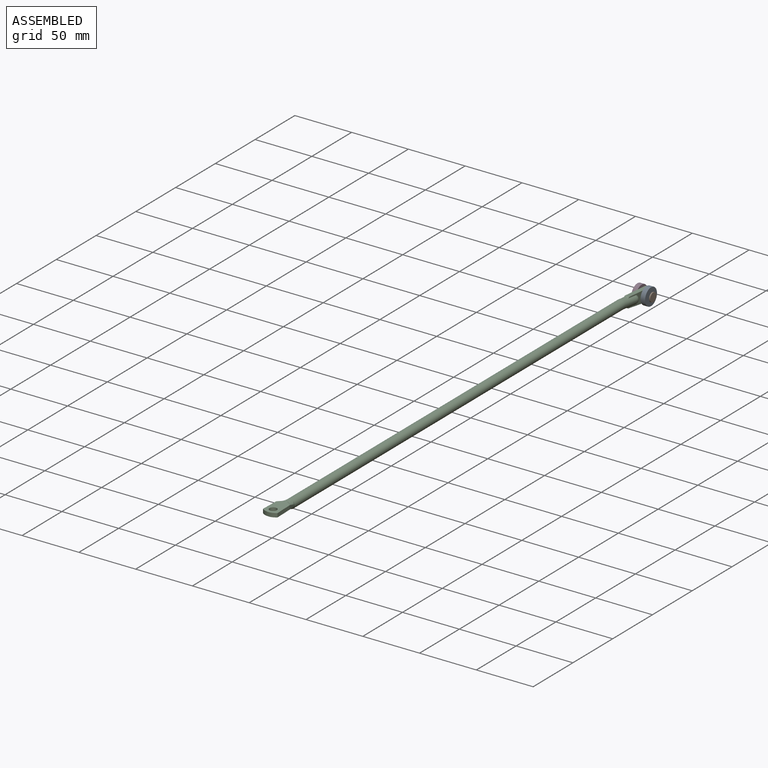
[diagram: assembled view]
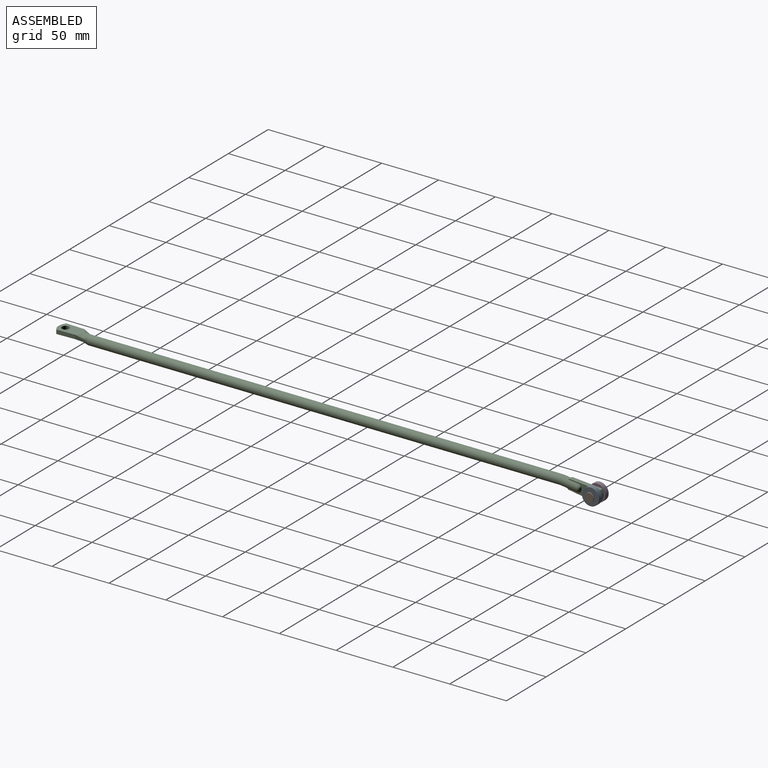
[diagram: assembled view, second angle]
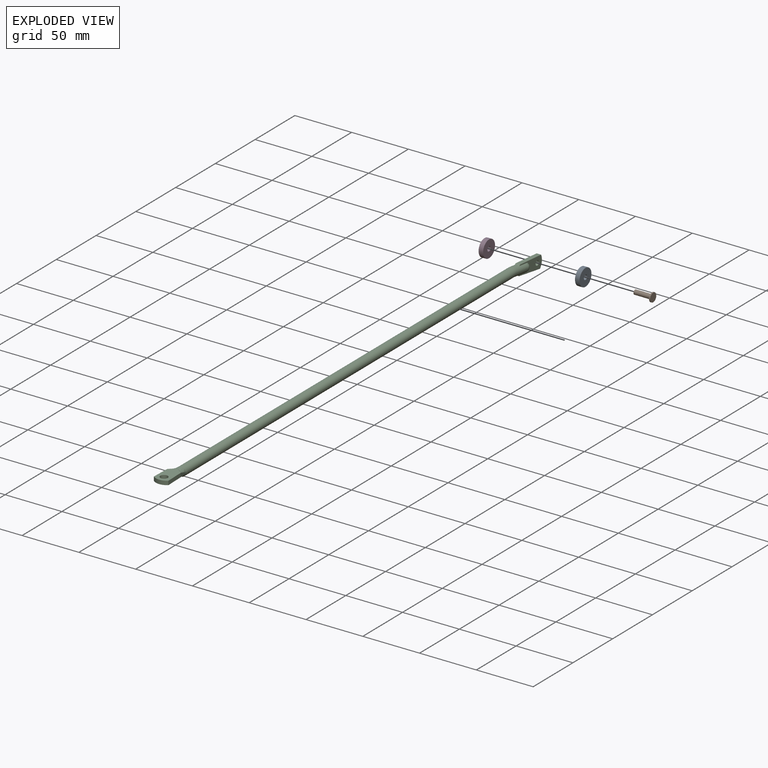
[diagram: exploded view]
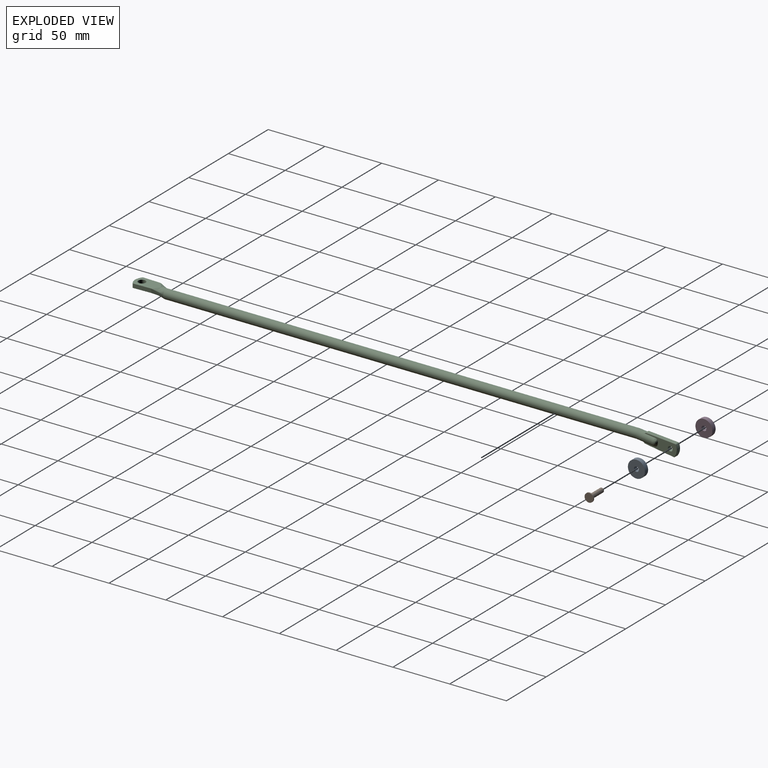
[diagram: exploded view, second angle]
ASSEMBLY  parts=4 mates=3
PART A: 4 faces, bbox 4x15x15 mm
  f0: cylinder r=2.1mm len=4.2mm, axis (1,0,0), area 52.8mm2, adj f2,f3
  f1: cylinder r=7.5mm len=15mm, axis (1,0,0), area 188.5mm2, adj f2,f3
  f2: plane 15x15mm, normal (1,0,0), area 162.9mm2, adj f0,f1
  f3: plane 15x15mm, normal (-1,0,0), area 162.9mm2, adj f0,f1
PART B: 5 faces, bbox 16x7.8x7.8 mm
  f0: cylinder r=2mm len=15mm, axis (1,0,0), area 188.5mm2, adj f2,f3
  f1: cylinder r=3.88mm len=7.75mm, axis (1,0,0), area 24.3mm2, adj f3,f4
  f2: plane 4x4mm, normal (1,0,0), area 12.6mm2, adj f0
  f3: plane 7.75x7.75mm, normal (1,0,0), area 34.6mm2, adj f0,f1
  f4: plane 7.75x7.75mm, normal (-1,0,0), area 47.2mm2, adj f1
PART C: 55 faces, bbox 12.8x13.5x479.4 mm
  f0: cylinder r=0.2mm len=9.06mm, axis (0,-0.12,0.99), area 1.9mm2, adj f4,f16,f25,f35
  f1: cylinder r=1mm len=3.5mm, axis (-1,0,0), area 3.8mm2, adj f22,f29,f36,f44
  f2: cylinder r=1mm len=3.5mm, axis (-1,0,0), area 3.8mm2, adj f31,f32,f36,f54
  f3: bspline ~1.83x1.26mm, area 0.4mm2, adj f4,f12,f25,f27
  f4: bspline ~1.01x0.21mm, area 0.1mm2, adj f0,f3,f35
  f5: bspline ~1.01x0.23mm, area 0.1mm2, adj f17,f35,f53
  f6: cylinder r=4mm len=415.03mm, axis (0,0,-1), area 10430.7mm2, adj f8,f34,f46,f47,f48
  f7: bspline ~7.62x3.55mm, area 0mm2, adj f9,f35
  f8: bspline ~9.24x5.21mm, area 27.1mm2, adj f6,f34,f43,f46
  f9: bspline ~7.22x3.53mm, area 2.4mm2, adj f7,f10,f33,f38
  f10: cylinder r=0.2mm len=9.06mm, axis (0,-0.12,0.99), area 1.9mm2, adj f9,f14,f33,f35
  f11: bspline ~3.51x0.14mm, area 0.5mm2, adj f12,f21,f27,f54
  f12: bspline ~5.49x1.68mm, area 5.9mm2, adj f3,f11,f13,f35
  f13: bspline ~1.83x1.26mm, area 0.4mm2, adj f12,f14,f21,f33
  f14: bspline ~1.01x0.21mm, area 0.1mm2, adj f10,f13,f35
  f15: bspline ~1.01x0.23mm, area 0.1mm2, adj f20,f35,f38
  f16: bspline ~7.2x3.53mm, area 2.4mm2, adj f0,f17,f25,f28
  f17: cylinder r=0.2mm len=9.06mm, axis (0,-0.12,0.99), area 1.9mm2, adj f5,f16,f25,f35
  f18: bspline ~3.51x0.15mm, area 0.5mm2, adj f24,f29,f45,f49
  f19: cylinder r=10mm len=12.8mm, axis (0,1,0), area 48.6mm2, adj f39,f40,f42,f43
  f20: bspline ~2.03x0.87mm, area 0.4mm2, adj f15,f24,f33,f49
  f21: sphere r=0.2mm, area 0mm2, adj f11,f13,f26
  f22: torus R=0.8mm, axis (-1,0,0), area 0.3mm2, adj f1,f23,f33,f52
  f23: torus R=9.8mm, axis (-1,0,0), area 3.2mm2, adj f22,f32,f33,f36
  f24: sphere r=0.2mm, area 0mm2, adj f18,f20,f52
  f25: plane 29.2x12.59mm, normal (-1,0,0), area 174.5mm2, adj f0,f3,f16,f17,f30,f31,f37,f41
  f26: cylinder r=0.2mm len=25.7mm, axis (0,-0.16,0.99), area 8.2mm2, adj f21,f32,f33,f54
  f27: sphere r=0.2mm, area 0mm2, adj f3,f11,f41
  f28: bspline ~7.62x3.55mm, area 0mm2, adj f16,f35
  f29: plane 25.93x3.5mm, normal (0,-1,-0.08), area 91mm2, adj f1,f18,f30,f52
  f30: cylinder r=0.2mm len=25.92mm, axis (0,-0.08,1), area 8.2mm2, adj f25,f29,f44,f45
  f31: torus R=0.8mm, axis (1,0,0), area 0.3mm2, adj f2,f25,f41,f50
  f32: torus R=0.8mm, axis (-1,0,0), area 0.3mm2, adj f2,f23,f26,f33
  f33: plane 29.2x12.59mm, normal (1,0,0), area 174.5mm2, adj f9,f10,f13,f20,f22,f23,f26,f32
  f34: bspline ~11.8x9.15mm, area 102.3mm2, adj f6,f8,f40,f48
  f35: cylinder r=4mm len=16.11mm, axis (0,-0.12,0.99), area 299.2mm2, adj f0,f4,f5,f7,f10,f12,f14,f15
  f36: cylinder r=10mm len=9.88mm, axis (-1,0,0), area 36.5mm2, adj f1,f2,f23,f50
  f37: cylinder r=2.05mm len=4.1mm, axis (-1,0,0), area 50.2mm2, adj f25,f33
  f38: cylinder r=0.2mm len=9.06mm, axis (0,-0.12,0.99), area 1.9mm2, adj f9,f15,f33,f35
  f39: plane 18.32x12.8mm, normal (0,-1,0), area 183.9mm2, adj f19,f42,f43,f46,f51
  f40: plane 18.32x12.8mm, normal (0,1,0), area 183.9mm2, adj f19,f34,f42,f43,f51
  f41: cylinder r=0.2mm len=25.7mm, axis (0,0.16,-0.99), area 8.2mm2, adj f25,f27,f31,f54
  f42: plane 16x3.5mm, normal (1,0,-0.03), area 56mm2, adj f19,f39,f40,f48
  f43: plane 16x3.5mm, normal (-1,0,-0.03), area 56mm2, adj f8,f19,f39,f40
  f44: torus R=0.8mm, axis (1,0,0), area 0.3mm2, adj f1,f25,f30,f50
  f45: sphere r=0.2mm, area 0mm2, adj f18,f30,f53
  f46: bspline ~11.8x9.15mm, area 97.5mm2, adj f6,f8,f39,f48
  f47: torus R=8mm, axis (1,0,0), area 23.8mm2, adj f6,f35
  f48: bspline ~9.24x5.21mm, area 27.1mm2, adj f6,f34,f42,f46
  f49: bspline ~5.49x1.89mm, area 5.9mm2, adj f18,f20,f35,f53
  f50: torus R=9.8mm, axis (1,0,0), area 3.2mm2, adj f25,f31,f36,f44
  f51: cylinder r=3.25mm len=6.5mm, axis (0,1,0), area 71.5mm2, adj f39,f40
  f52: cylinder r=0.2mm len=25.92mm, axis (0,0.08,-1), area 8.2mm2, adj f22,f24,f29,f33
  f53: bspline ~2.03x0.87mm, area 0.4mm2, adj f5,f25,f45,f49
  f54: plane 25.69x4.04mm, normal (0,0.99,0.16), area 91mm2, adj f2,f11,f26,f41
PART D: same geometry as A
PLACE A rot(axis=(0,-0.71,0.71),180deg) t=(5.97,468.18,-5.83)mm
PLACE B rot(axis=(0,-0.71,0.71),180deg) t=(7.92,468.18,-5.83)mm
PLACE C rot(axis=(0,-0.71,0.71),180deg) t=(-0.08,23.14,-2.32)mm
PLACE D rot(axis=(0,-0.71,0.71),180deg) t=(-2.13,468.18,-5.83)mm
MATE fastened B.f0 <-> A.f0  axis (1,0,0) through (7.92,468.18,-5.83)mm
MATE fastened D.f0 <-> C.f37  axis (1,0,0) through (-2.13,468.18,-5.83)mm
MATE fastened A.f0 <-> C.f37  axis (-1,0,0) through (1.97,468.18,-5.83)mm
